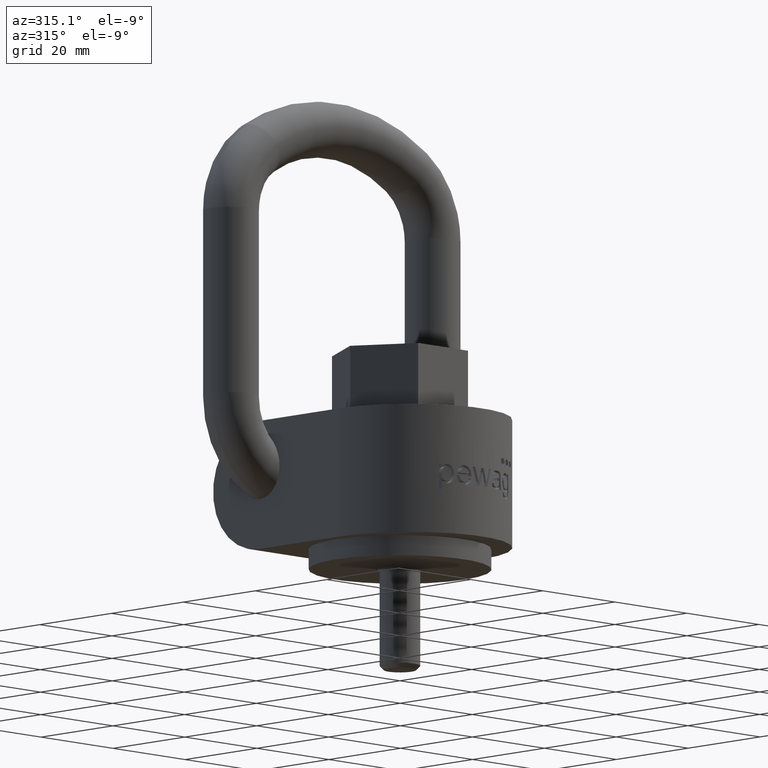
[diagram: clean part render]
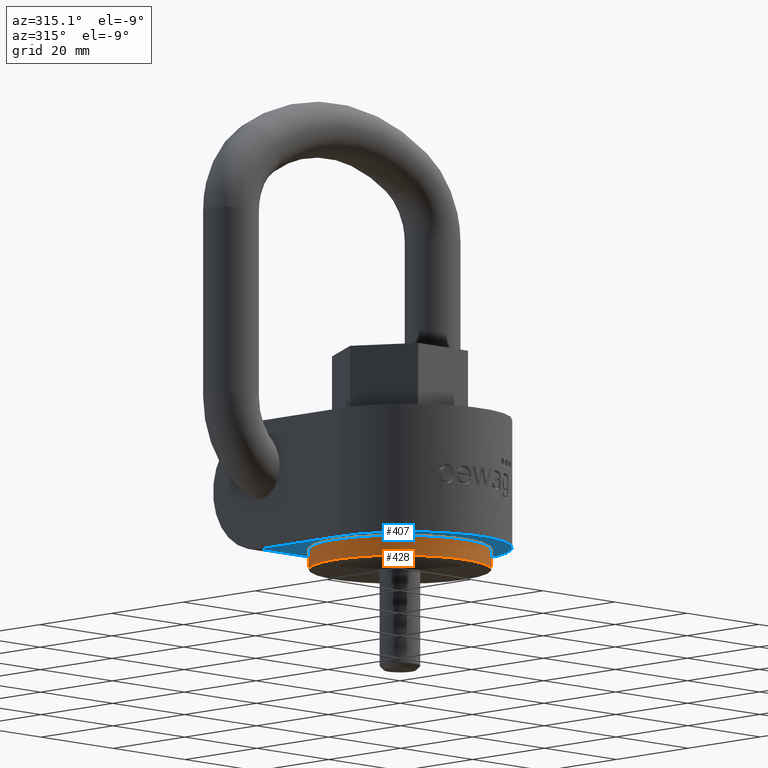
[diagram: same view with the hole feature highlighted: cylindrical wall and planar end face, labeled with their STEP entity ids]
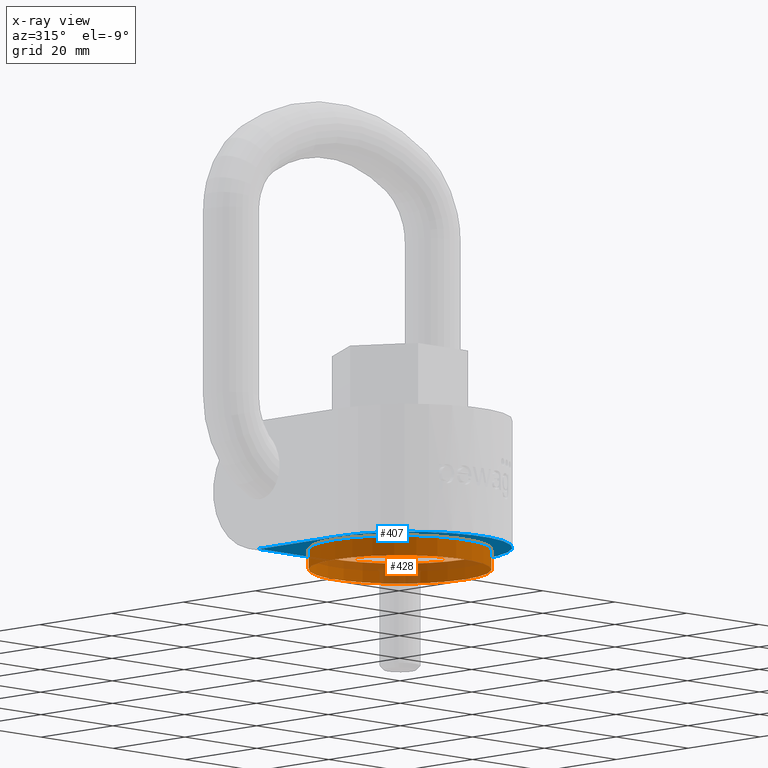
[diagram: x-ray of the same camera — body ghosted, the hole faces saturated]
A machine part, auxiliary view. The highlighted faces form one hole feature of diameter 36 mm: the cylindrical wall (entity #428, orange) and its adjacent planar end face (entity #407, blue) — they share a circular edge in the B-rep.
The next image is the same camera in x-ray (body ghosted, the hole faces saturated) — the bore reads through the body.
Wall:
#428=ADVANCED_FACE('',(#585,#586),#538,.T.);
#538=CYLINDRICAL_SURFACE('',#2475,18.);
#585=FACE_BOUND('',#660,.T.);
#586=FACE_BOUND('',#661,.T.);
#660=EDGE_LOOP('',(#1290));
#661=EDGE_LOOP('',(#1291));
#1101=CIRCLE('',#2448,18.);
#1106=CIRCLE('',#2474,18.);
#1290=ORIENTED_EDGE('',*,*,#2058,.F.);
#1291=ORIENTED_EDGE('',*,*,#2014,.T.);
#1803=VERTEX_POINT('',#3803);
#1832=VERTEX_POINT('',#3897);
#2014=EDGE_CURVE('',#1803,#1803,#1101,.T.);
#2058=EDGE_CURVE('',#1832,#1832,#1106,.T.);
#2448=AXIS2_PLACEMENT_3D('',#3802,#2623,#2624);
#2474=AXIS2_PLACEMENT_3D('',#3896,#2714,#2715);
#2475=AXIS2_PLACEMENT_3D('',#3898,#2716,#2717);
#2623=DIRECTION('',(0.,0.,-1.));
#2624=DIRECTION('',(1.,1.22464679914735E-16,0.));
#2714=DIRECTION('',(0.,0.,-1.));
#2715=DIRECTION('',(1.,1.22464679914735E-16,0.));
#2716=DIRECTION('',(0.,0.,1.));
#2717=DIRECTION('',(1.,0.,0.));
#3802=CARTESIAN_POINT('',(0.,0.,6.69539461904587E-14));
#3803=CARTESIAN_POINT('',(18.,2.20436423846524E-15,6.69539461904587E-14));
#3896=CARTESIAN_POINT('',(0.,0.,-3.99999999999993));
#3897=CARTESIAN_POINT('',(18.,2.20436423846524E-15,-3.99999999999993));
#3898=CARTESIAN_POINT('',(0.,0.,-3.99999999999993));
End face:
#347=PLANE('',#2449);
#407=ADVANCED_FACE('',(#575,#576),#347,.F.);
#575=FACE_BOUND('',#634,.T.);
#576=FACE_BOUND('',#635,.T.);
#634=EDGE_LOOP('',(#1193,#1194,#1195,#1196));
#635=EDGE_LOOP('',(#1197));
#793=LINE('',#3797,#919);
#794=LINE('',#3799,#920);
#795=LINE('',#3801,#921);
#919=VECTOR('',#2620,1.);
#920=VECTOR('',#2621,1.);
#921=VECTOR('',#2622,1.);
#1099=CIRCLE('',#2445,20.);
#1101=CIRCLE('',#2448,18.);
#1193=ORIENTED_EDGE('',*,*,#2011,.F.);
#1194=ORIENTED_EDGE('',*,*,#2005,.T.);
#1195=ORIENTED_EDGE('',*,*,#2012,.T.);
#1196=ORIENTED_EDGE('',*,*,#2013,.F.);
#1197=ORIENTED_EDGE('',*,*,#2014,.F.);
#1795=VERTEX_POINT('',#3671);
#1796=VERTEX_POINT('',#3672);
#1801=VERTEX_POINT('',#3798);
#1802=VERTEX_POINT('',#3800);
#1803=VERTEX_POINT('',#3803);
#2005=EDGE_CURVE('',#1795,#1796,#1099,.T.);
#2011=EDGE_CURVE('',#1795,#1801,#793,.T.);
#2012=EDGE_CURVE('',#1796,#1802,#794,.T.);
#2013=EDGE_CURVE('',#1801,#1802,#795,.T.);
#2014=EDGE_CURVE('',#1803,#1803,#1101,.T.);
#2445=AXIS2_PLACEMENT_3D('',#3670,#2612,#2613);
#2448=AXIS2_PLACEMENT_3D('',#3802,#2623,#2624);
#2449=AXIS2_PLACEMENT_3D('',#3804,#2625,#2626);
#2612=DIRECTION('',(0.,1.15577451087051E-16,-1.));
#2613=DIRECTION('',(0.,-1.,-1.15577451087051E-16));
#2620=DIRECTION('',(0.,1.,1.15577451087051E-16));
#2621=DIRECTION('',(0.,1.,1.15577451087051E-16));
#2622=DIRECTION('',(-1.,0.,0.));
#2623=DIRECTION('',(0.,0.,-1.));
#2624=DIRECTION('',(1.,1.22464679914735E-16,0.));
#2625=DIRECTION('',(0.,-1.15577451087051E-16,1.));
#2626=DIRECTION('',(0.,-1.,-1.15577451087051E-16));
#3670=CARTESIAN_POINT('',(0.,-3.00000000000001,3.46944695195361E-15));
#3671=CARTESIAN_POINT('',(20.,-3.00000000000001,9.36697495355901E-16));
#3672=CARTESIAN_POINT('',(-20.,-3.00000000000001,9.36697495355901E-16));
#3797=CARTESIAN_POINT('',(20.,-23.,-1.37485152638513E-15));
#3798=CARTESIAN_POINT('',(20.,19.245,3.50771789478736E-15));
#3799=CARTESIAN_POINT('',(-20.,-23.,-1.37485152638513E-15));
#3800=CARTESIAN_POINT('',(-20.,19.245,3.50771789478736E-15));
#3801=CARTESIAN_POINT('',(20.,19.245,3.50771789478736E-15));
#3802=CARTESIAN_POINT('',(0.,0.,6.69539461904587E-14));
#3803=CARTESIAN_POINT('',(18.,2.20436423846524E-15,6.69539461904587E-14));
#3804=CARTESIAN_POINT('',(20.,-23.,-1.37485152638513E-15));